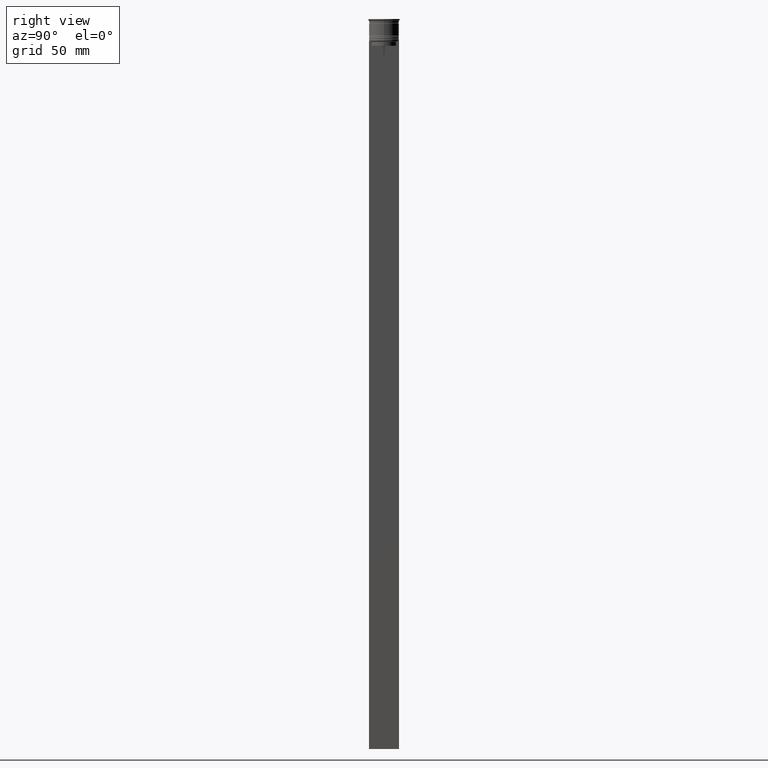
[diagram: clean part render]
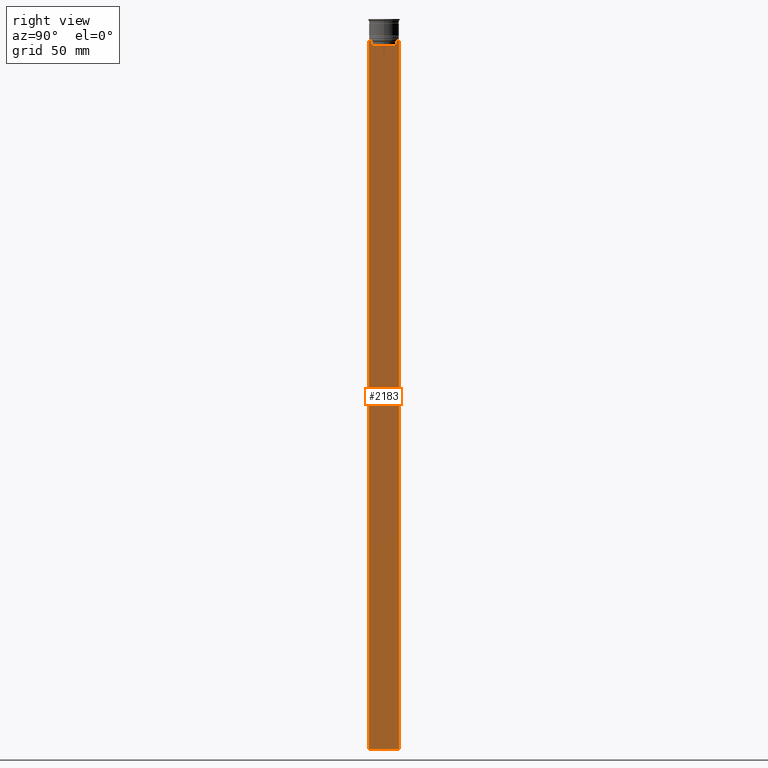
[diagram: same view with one face highlighted and labeled with its STEP entity id]
A machine part, right view. The second image highlights one B-rep face of the part: STEP entity #2183.
In plain terms, the highlighted planar face has unit normal (-1, 0, 0).
Its self-contained STEP definition (entity closure, byte-faithful):
#51 = EDGE_CURVE ( 'NONE', #1355, #2213, #1201, .T. ) ;
#79 = ORIENTED_EDGE ( 'NONE', *, *, #905, .F. ) ;
#170 = B_SPLINE_CURVE_WITH_KNOTS ( 'NONE', 3,
 ( #467, #2079, #1084, #171 ),
 .UNSPECIFIED., .F., .F.,
 ( 4, 4 ),
 ( 0.03673372442973153046, 0.03744389749832059688 ),
 .UNSPECIFIED. ) ;
#171 = CARTESIAN_POINT ( 'NONE',  ( 0.5000000000000000000, -8.385105843100605583, -14.00000000000000178 ) ) ;
#186 = VECTOR ( 'NONE', #1324, 1000.000000000000000 ) ;
#235 = ORIENTED_EDGE ( 'NONE', *, *, #1595, .T. ) ;
#254 = VECTOR ( 'NONE', #865, 1000.000000000000000 ) ;
#310 = LINE ( 'NONE', #933, #982 ) ;
#363 = EDGE_CURVE ( 'NONE', #1814, #1069, #1159, .T. ) ;
#373 = B_SPLINE_CURVE_WITH_KNOTS ( 'NONE', 3,
 ( #826, #2628, #2645, #410 ),
 .UNSPECIFIED., .F., .F.,
 ( 4, 4 ),
 ( 0.01426761478740281447, 0.01497538974438914448 ),
 .UNSPECIFIED. ) ;
#410 = CARTESIAN_POINT ( 'NONE',  ( 0.5000000000000000000, 7.884161337770803080, -14.50000000000000000 ) ) ;
#467 = CARTESIAN_POINT ( 'NONE',  ( 0.5000000000000000000, -7.884161337770803080, -14.50000000000000000 ) ) ;
#492 = CARTESIAN_POINT ( 'NONE',  ( 0.5000000000000000000, 7.884161337770803080, -14.50000000000000000 ) ) ;
#539 = EDGE_CURVE ( 'NONE', #2213, #1794, #1258, .T. ) ;
#586 = CARTESIAN_POINT ( 'NONE',  ( 0.5000000000000000000, -9.500000000000001776, -14.00000000000000178 ) ) ;
#588 = VERTEX_POINT ( 'NONE', #1030 ) ;
#694 = ORIENTED_EDGE ( 'NONE', *, *, #1484, .T. ) ;
#711 = ORIENTED_EDGE ( 'NONE', *, *, #363, .T. ) ;
#782 = CARTESIAN_POINT ( 'NONE',  ( 0.5000000000000000000, 7.899999999999994138, -17.00000000000000000 ) ) ;
#783 = EDGE_CURVE ( 'NONE', #2164, #825, #2654, .T. ) ;
#825 = VERTEX_POINT ( 'NONE', #1213 ) ;
#826 = CARTESIAN_POINT ( 'NONE',  ( 0.5000000000000000000, 8.385105843100605583, -14.00000000000000178 ) ) ;
#851 = VECTOR ( 'NONE', #977, 1000.000000000000000 ) ;
#865 = DIRECTION ( 'NONE',  ( 0.000000000000000000, 0.000000000000000000, -1.000000000000000000 ) ) ;
#871 = VERTEX_POINT ( 'NONE', #1678 ) ;
#899 = ORIENTED_EDGE ( 'NONE', *, *, #539, .T. ) ;
#905 = EDGE_CURVE ( 'NONE', #1814, #2331, #1711, .T. ) ;
#915 = CARTESIAN_POINT ( 'NONE',  ( 0.5000000000000000000, 9.386692708297204035, -14.00000000000000178 ) ) ;
#919 = CARTESIAN_POINT ( 'NONE',  ( 0.5000000000000000000, -9.500000000000001776, 5.026297590440445440 ) ) ;
#933 = CARTESIAN_POINT ( 'NONE',  ( 0.5000000000000000000, -9.500000000000001776, -14.00000000000000178 ) ) ;
#957 = CARTESIAN_POINT ( 'NONE',  ( 0.5000000000000000000, -9.500000000000001776, -14.00000000000000178 ) ) ;
#970 = VECTOR ( 'NONE', #1181, 1000.000000000000000 ) ;
#971 = VECTOR ( 'NONE', #1649, 1000.000000000000000 ) ;
#977 = DIRECTION ( 'NONE',  ( 0.000000000000000000, -1.000000000000000000, 0.000000000000000000 ) ) ;
#982 = VECTOR ( 'NONE', #1124, 1000.000000000000000 ) ;
#984 = LINE ( 'NONE', #2620, #1706 ) ;
#986 = CARTESIAN_POINT ( 'NONE',  ( 0.5000000000000000000, -7.884161337770803080, -17.00000000000000000 ) ) ;
#1030 = CARTESIAN_POINT ( 'NONE',  ( 0.5000000000000000000, -9.500000000000001776, -14.00000000000000178 ) ) ;
#1046 = CARTESIAN_POINT ( 'NONE',  ( 0.5000000000000000000, 9.499999999999998224, -464.0000000000000000 ) ) ;
#1069 = VERTEX_POINT ( 'NONE', #915 ) ;
#1084 = CARTESIAN_POINT ( 'NONE',  ( 0.5000000000000000000, -8.218133703942523738, -14.16667607853445787 ) ) ;
#1111 = LINE ( 'NONE', #1494, #186 ) ;
#1124 = DIRECTION ( 'NONE',  ( 0.000000000000000000, -1.000000000000000000, 0.000000000000000000 ) ) ;
#1159 = LINE ( 'NONE', #957, #2052 ) ;
#1181 = DIRECTION ( 'NONE',  ( 0.000000000000000000, -1.000000000000000000, 0.000000000000000000 ) ) ;
#1197 = AXIS2_PLACEMENT_3D ( 'NONE', #919, #2158, #1907 ) ;
#1201 = LINE ( 'NONE', #782, #2136 ) ;
#1209 = ORIENTED_EDGE ( 'NONE', *, *, #2533, .T. ) ;
#1213 = CARTESIAN_POINT ( 'NONE',  ( 0.5000000000000000000, -9.386692708297204035, -14.00000000000000178 ) ) ;
#1221 = EDGE_CURVE ( 'NONE', #588, #2370, #1430, .T. ) ;
#1258 = LINE ( 'NONE', #2649, #971 ) ;
#1322 = PLANE ( 'NONE',  #1197 ) ;
#1324 = DIRECTION ( 'NONE',  ( 0.000000000000000000, 1.000000000000000000, 0.000000000000000000 ) ) ;
#1355 = VERTEX_POINT ( 'NONE', #1412 ) ;
#1412 = CARTESIAN_POINT ( 'NONE',  ( 0.5000000000000000000, 7.884161337770803080, -17.00000000000000000 ) ) ;
#1418 = DIRECTION ( 'NONE',  ( 0.000000000000000000, -1.000000000000000000, 0.000000000000000000 ) ) ;
#1430 = LINE ( 'NONE', #1843, #1953 ) ;
#1436 = EDGE_CURVE ( 'NONE', #825, #588, #2466, .T. ) ;
#1484 = EDGE_CURVE ( 'NONE', #2561, #1355, #984, .T. ) ;
#1494 = CARTESIAN_POINT ( 'NONE',  ( 0.5000000000000000000, -9.500000000000001776, -464.0000000000000000 ) ) ;
#1562 = EDGE_CURVE ( 'NONE', #1794, #2164, #170, .T. ) ;
#1595 = EDGE_CURVE ( 'NONE', #871, #2561, #373, .T. ) ;
#1649 = DIRECTION ( 'NONE',  ( -0.000000000000000000, -0.000000000000000000, 1.000000000000000000 ) ) ;
#1666 = CARTESIAN_POINT ( 'NONE',  ( 0.5000000000000000000, 9.499999999999998224, 5.026297590440445440 ) ) ;
#1678 = CARTESIAN_POINT ( 'NONE',  ( 0.5000000000000000000, 8.385105843100605583, -14.00000000000000178 ) ) ;
#1706 = VECTOR ( 'NONE', #2423, 1000.000000000000000 ) ;
#1711 = LINE ( 'NONE', #1666, #254 ) ;
#1776 = DIRECTION ( 'NONE',  ( 0.000000000000000000, -1.000000000000000000, 0.000000000000000000 ) ) ;
#1794 = VERTEX_POINT ( 'NONE', #2443 ) ;
#1814 = VERTEX_POINT ( 'NONE', #2643 ) ;
#1843 = CARTESIAN_POINT ( 'NONE',  ( 0.5000000000000000000, -9.500000000000001776, 5.026297590440445440 ) ) ;
#1874 = ORIENTED_EDGE ( 'NONE', *, *, #783, .T. ) ;
#1898 = ORIENTED_EDGE ( 'NONE', *, *, #2156, .T. ) ;
#1907 = DIRECTION ( 'NONE',  ( 0.000000000000000000, 0.000000000000000000, 1.000000000000000000 ) ) ;
#1933 = FACE_OUTER_BOUND ( 'NONE', #2428, .T. ) ;
#1936 = CARTESIAN_POINT ( 'NONE',  ( 0.5000000000000000000, -8.385105843100605583, -14.00000000000000178 ) ) ;
#1953 = VECTOR ( 'NONE', #2633, 1000.000000000000000 ) ;
#2052 = VECTOR ( 'NONE', #1776, 1000.000000000000000 ) ;
#2079 = CARTESIAN_POINT ( 'NONE',  ( 0.5000000000000000000, -8.051152795888546265, -14.33334334204685057 ) ) ;
#2088 = ORIENTED_EDGE ( 'NONE', *, *, #1436, .T. ) ;
#2136 = VECTOR ( 'NONE', #1418, 1000.000000000000000 ) ;
#2156 = EDGE_CURVE ( 'NONE', #1069, #871, #310, .T. ) ;
#2158 = DIRECTION ( 'NONE',  ( -1.000000000000000000, 0.000000000000000000, 0.000000000000000000 ) ) ;
#2164 = VERTEX_POINT ( 'NONE', #1936 ) ;
#2183 = ADVANCED_FACE ( 'NONE', ( #1933 ), #1322, .F. ) ;
#2213 = VERTEX_POINT ( 'NONE', #986 ) ;
#2290 = ORIENTED_EDGE ( 'NONE', *, *, #51, .T. ) ;
#2331 = VERTEX_POINT ( 'NONE', #1046 ) ;
#2370 = VERTEX_POINT ( 'NONE', #2664 ) ;
#2423 = DIRECTION ( 'NONE',  ( 0.000000000000000000, 0.000000000000000000, -1.000000000000000000 ) ) ;
#2428 = EDGE_LOOP ( 'NONE', ( #1898, #235, #694, #2290, #899, #2576, #1874, #2088, #2461, #1209, #79, #711 ) ) ;
#2439 = CARTESIAN_POINT ( 'NONE',  ( 0.5000000000000000000, -9.500000000000001776, -14.00000000000000178 ) ) ;
#2443 = CARTESIAN_POINT ( 'NONE',  ( 0.5000000000000000000, -7.884161337770803080, -14.50000000000000000 ) ) ;
#2461 = ORIENTED_EDGE ( 'NONE', *, *, #1221, .T. ) ;
#2466 = LINE ( 'NONE', #2439, #970 ) ;
#2533 = EDGE_CURVE ( 'NONE', #2370, #2331, #1111, .T. ) ;
#2561 = VERTEX_POINT ( 'NONE', #492 ) ;
#2576 = ORIENTED_EDGE ( 'NONE', *, *, #1562, .T. ) ;
#2620 = CARTESIAN_POINT ( 'NONE',  ( 0.5000000000000000000, 7.884161337770803080, 0.000000000000000000 ) ) ;
#2628 = CARTESIAN_POINT ( 'NONE',  ( 0.5000000000000000000, 8.218133718559618828, -14.16667606394327983 ) ) ;
#2633 = DIRECTION ( 'NONE',  ( 0.000000000000000000, 0.000000000000000000, -1.000000000000000000 ) ) ;
#2643 = CARTESIAN_POINT ( 'NONE',  ( 0.5000000000000000000, 9.499999999999998224, -14.00000000000000178 ) ) ;
#2645 = CARTESIAN_POINT ( 'NONE',  ( 0.5000000000000000000, 8.051152811434374001, -14.33334332653219079 ) ) ;
#2649 = CARTESIAN_POINT ( 'NONE',  ( 0.5000000000000000000, -7.884161337770803080, 0.000000000000000000 ) ) ;
#2654 = LINE ( 'NONE', #586, #851 ) ;
#2664 = CARTESIAN_POINT ( 'NONE',  ( 0.5000000000000000000, -9.500000000000001776, -464.0000000000000000 ) ) ;